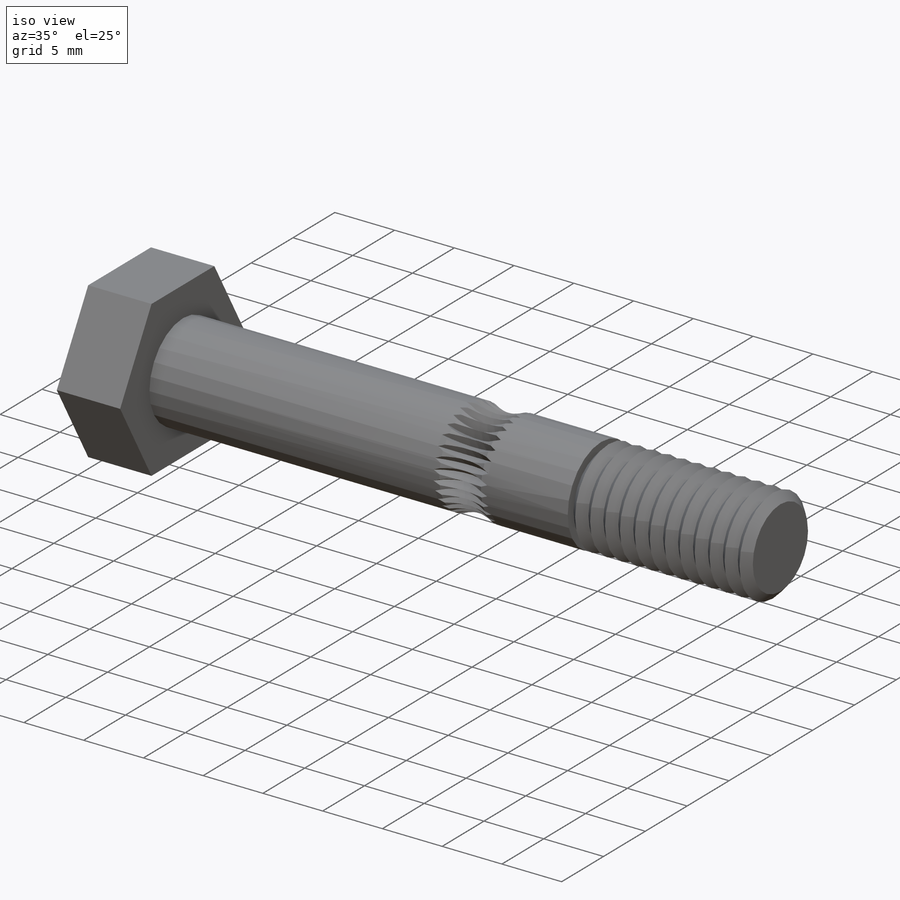
[diagram: iso view]
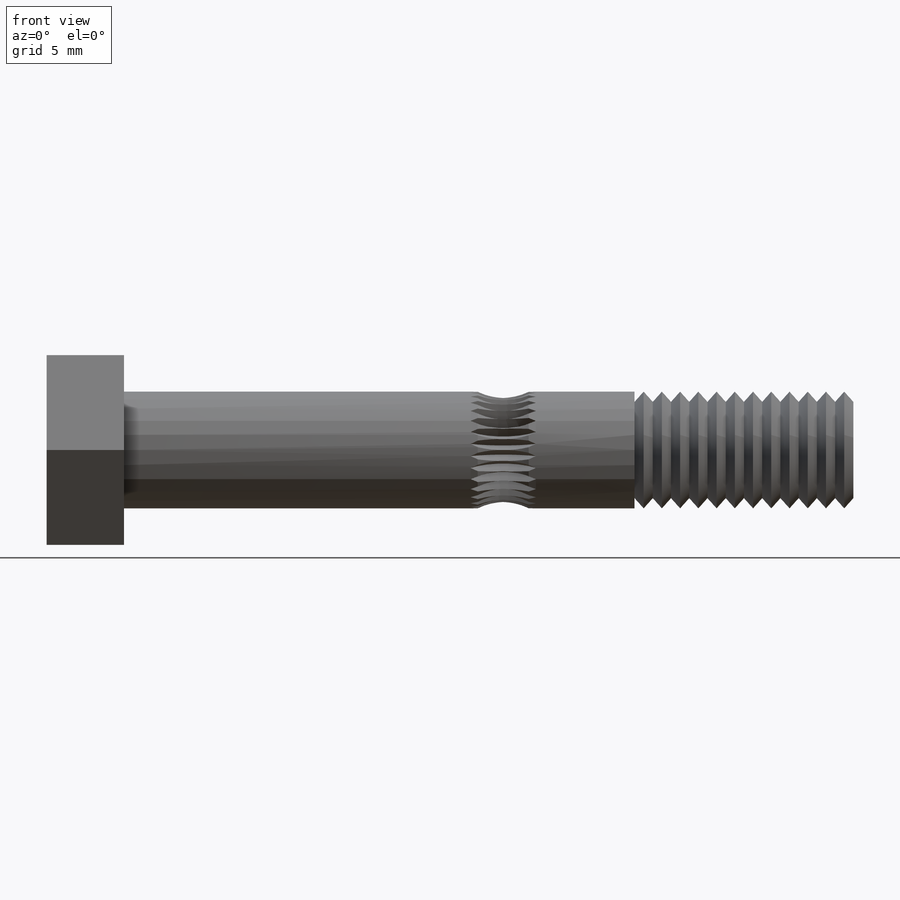
[diagram: front view]
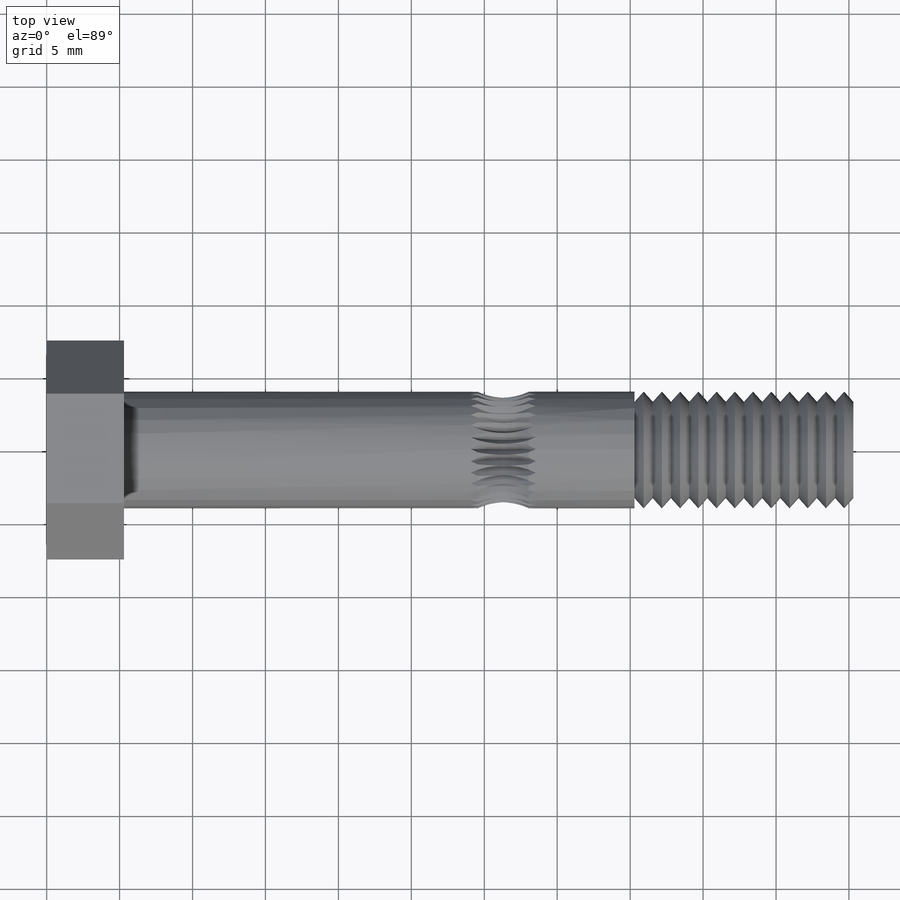
[diagram: top view]
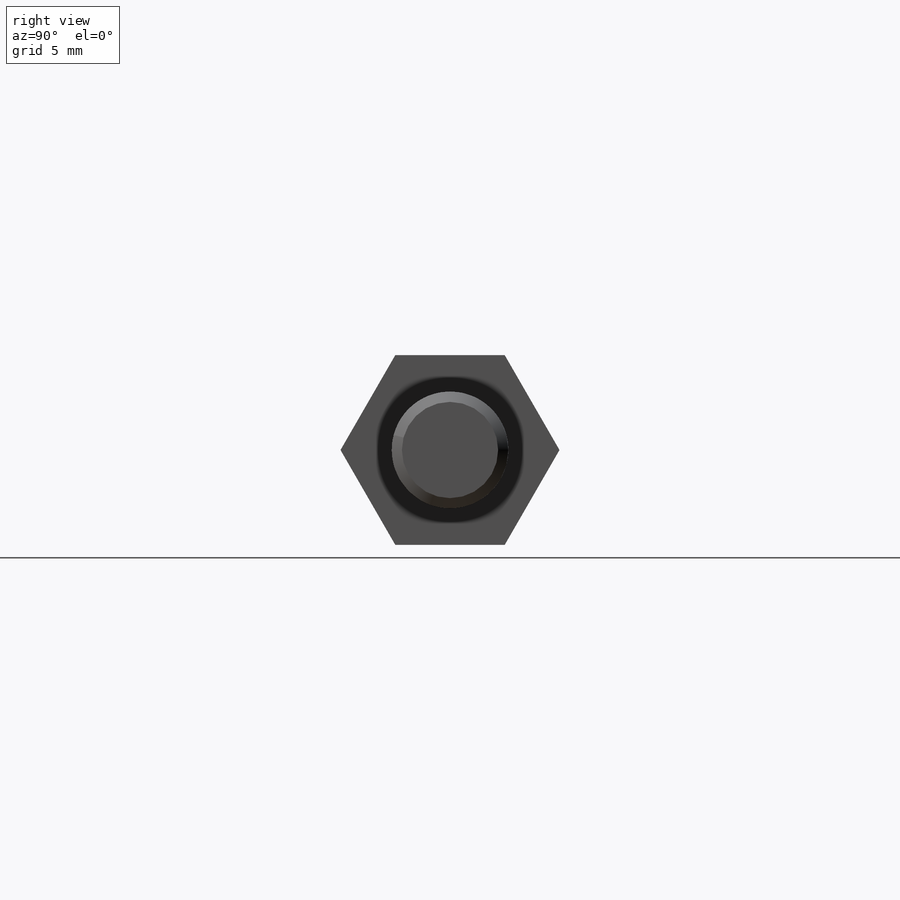
[diagram: right view]
SOLIDWORKS PART (.sldprt)
format: sldprt  version: not decoded by parser v0  size: 404,480 bytes
history: native  units: mm
features: sketch x4, cut_extrude x2, material x1, revolve x1, plane x1, cut_revolve x1, pattern_circular x1 (+11 scaffold rows collapsed)
feature tree (22):
  scaffold x11  (default folders/planes/origin — collapsed)
  material  "Material <not specified>"
  sketch  "Sketch1"  dims[c1.D10=~2.589303mm c1.D11=4.0mm c1.D1=4.0mm c1.D2=3.3mm c1.D3=25.0mm c1.D4=60.0mm c1.D5=5.3mm c1.D6=20.0mm c1.D7=1.25mm c1.D8=0.625mm c1.D9=26.0mm c2.D10=3.6mm]
  revolve  "Revolve1"  Angle=360deg
  sketch  "Sketch2"  dims[D1=13.0mm]
  cut_extrude  "Cut-Extrude1"  [1 undecoded]
  plane  "Plane1"  Offset=26mm
  sketch  "Sketch3"  dims[D1=6.0mm D2=6.0mm D3=4.5mm D4=1.0mm D5=0.5mm]
  cut_revolve  "Cut-Revolve1"  Angle=360deg
  pattern_circular  "CirPattern1"  Count=30 Angle=360deg
  sketch  "Sketch4"
  cut_extrude  "Cut-Extrude2"  Depth=10mm
decode coverage: 7 of 9 modeling features carry decoded parameters
note: ~ marks probable driven/reference dimensions
note: 1 parameter value undecoded
note: suppression state not decoded; provenance and decode notes live in map.json
